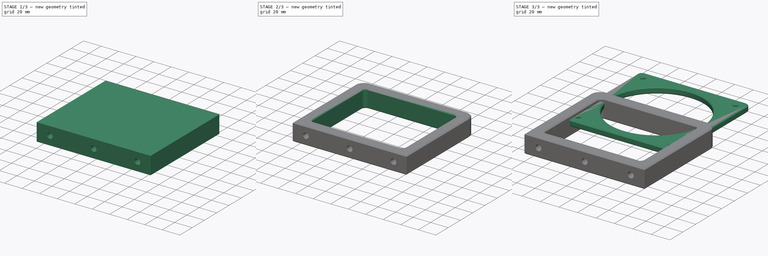
[diagram: build sequence overview — one tinted view per stage of 3, left to right]
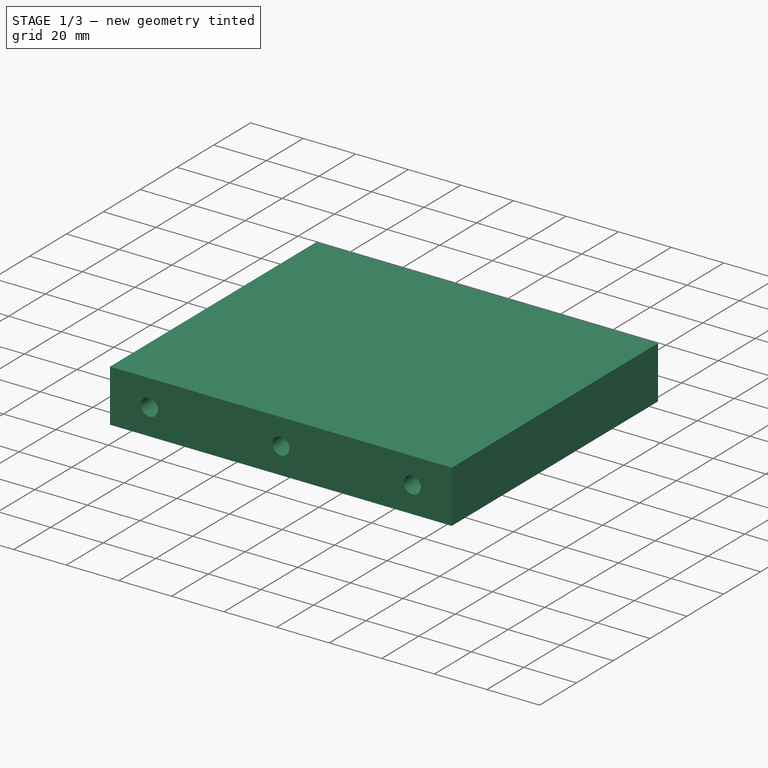
[diagram: stage 1 of 3 — iso view after this stage's code; geometry added in this stage tinted green]
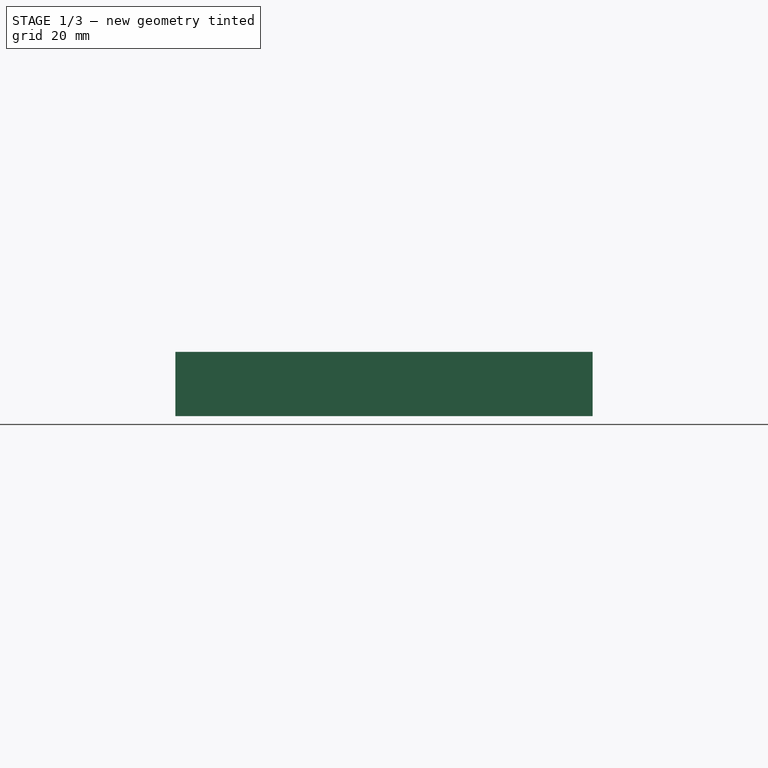
[diagram: stage 1 of 3 — front view after this stage's code; geometry added in this stage tinted green]
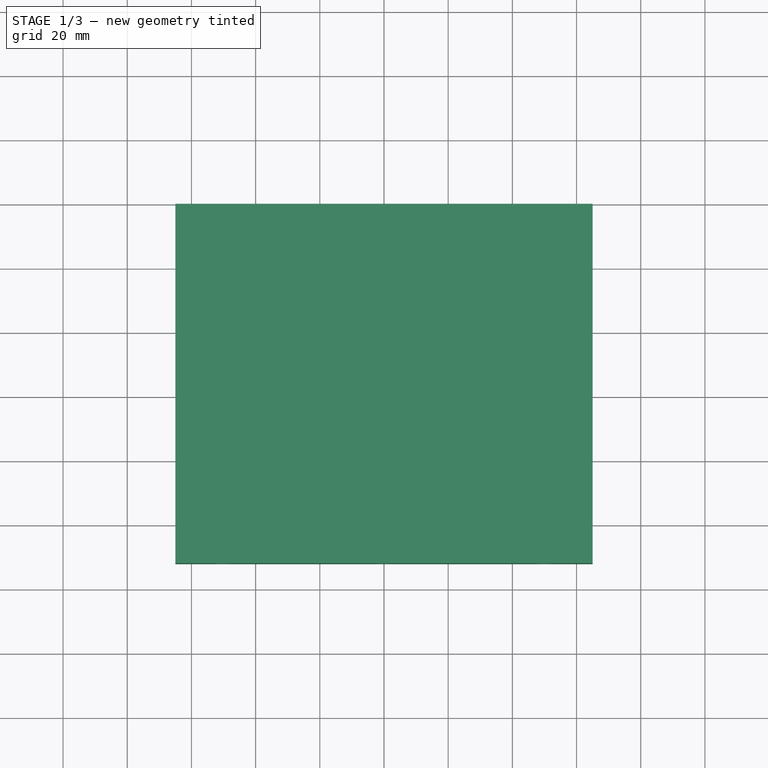
[diagram: stage 1 of 3 — top view after this stage's code; geometry added in this stage tinted green]
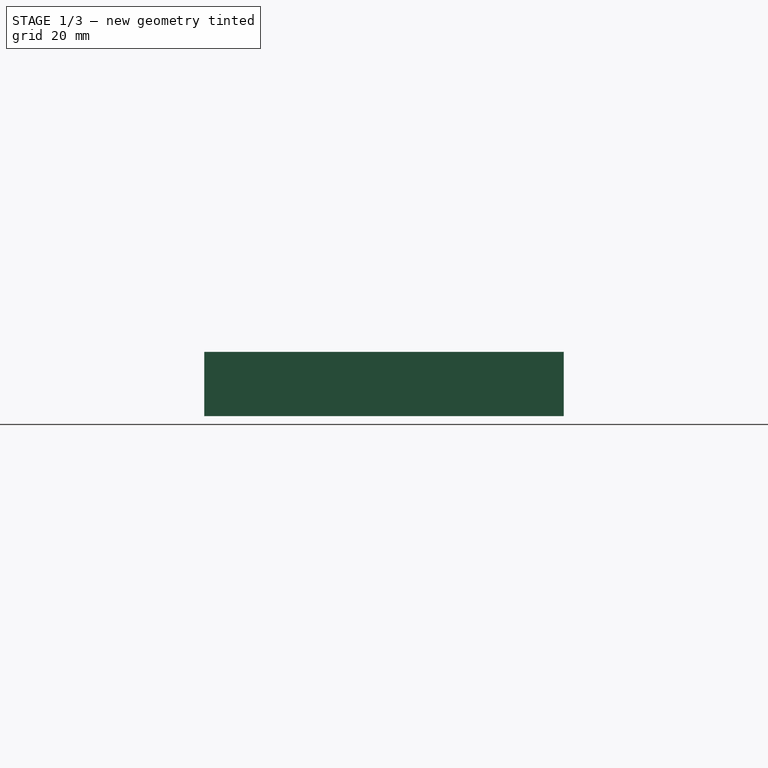
[diagram: stage 1 of 3 — right view after this stage's code; geometry added in this stage tinted green]
FCSTD DOCUMENT  (FreeCAD 0.22R36117 (Git))
Label: vesa 100 spacer
License: All rights reserved
LicenseURL: http://en.wikipedia.org/wiki/All_rights_reserved
objects: Sketcher::SketchObject×7, PartDesign::Body×3, PartDesign::Pad×2, PartDesign::Chamfer×2, PartDesign::Pocket×2, PartDesign::Fillet×1
note: 24 computed .brp shape members not serialized (recipe doc carries the construction recipe); baked Part::Feature solids carry a one-line shape summary decoded from their .brp

FEATURE [PartDesign::Body] Body  label="spacer"
  Group = -> [Sketch,Pad,Chamfer]
  Origin = -> Origin
  Tip = -> Chamfer
FEATURE [Sketcher::SketchObject] Sketch002
  FullyConstrained = true
  MapMode = 5
  Support = -> [XY_Plane001]
  sketch-geometry (22):
    g0: LineSegment StartX=-50 StartY=50 StartZ=0 EndX=-50 EndY=-50 EndZ=0
    g1: LineSegment StartX=-50 StartY=-50 StartZ=0 EndX=50 EndY=-50 EndZ=0
    g2: LineSegment StartX=50 StartY=-50 StartZ=0 EndX=50 EndY=50 EndZ=0
    g3: LineSegment StartX=50 StartY=50 StartZ=0 EndX=-50 EndY=50 EndZ=0
    g4: LineSegment StartX=-165 StartY=63 StartZ=0 EndX=165 EndY=63 EndZ=0
    g5: LineSegment StartX=165 StartY=63 StartZ=0 EndX=165 EndY=223 EndZ=0
    g6: LineSegment StartX=165 StartY=223 StartZ=0 EndX=245 EndY=223 EndZ=0
    g7: LineSegment StartX=245 StartY=223 StartZ=0 EndX=245 EndY=33 EndZ=0
    g8: LineSegment StartX=245 StartY=33 StartZ=0 EndX=75 EndY=-63 EndZ=0
    g9: LineSegment StartX=75 StartY=-63 StartZ=0 EndX=-75 EndY=-63 EndZ=0
    g10: LineSegment StartX=-75 StartY=-63 StartZ=0 EndX=-245 EndY=33 EndZ=0
    g11: LineSegment StartX=-245 StartY=33 StartZ=0 EndX=-245 EndY=223 EndZ=0
    g12: LineSegment StartX=-245 StartY=223 StartZ=0 EndX=-165 EndY=223 EndZ=0
    g13: LineSegment StartX=-165 StartY=223 StartZ=0 EndX=-165 EndY=63 EndZ=0
    g14: LineSegment StartX=-205 StartY=211.5 StartZ=0 EndX=-205 EndY=201.5 EndZ=0
    g15: LineSegment StartX=205 StartY=211.5 StartZ=0 EndX=205 EndY=201.5 EndZ=0
    g16: LineSegment StartX=215 StartY=201.5 StartZ=0 EndX=195 EndY=201.5 EndZ=0
    g17: LineSegment StartX=-215 StartY=201.5 StartZ=0 EndX=-195 EndY=201.5 EndZ=0
    g18: GeomPoint X=-165 Y=201.5 Z=0
    g19: GeomPoint X=-245 Y=201.5 Z=0
    g20: GeomPoint X=165 Y=201.5 Z=0
    g21: GeomPoint X=245 Y=201.5 Z=0
  constraints (59):
    c: Coincident(g0,g1)
    c: Coincident(g1,g2)
    c: Coincident(g2,g3)
    c: Coincident(g3,g0)
    c: Vertical(g0)
    c: Vertical(g2)
    c: Horizontal(g1)
    c: Horizontal(g3)
    c: Symmetric(g0,g2,g-1)
    c: Equal(g3,g2)
    c: DistanceX(g3,g3) = 100
    c: Coincident(g4,g5)
    c: Vertical(g5)
    c: Coincident(g5,g6)
    c: Horizontal(g6)
    c: Coincident(g6,g7)
    c: Vertical(g7)
    c: Coincident(g7,g8)
    c: Coincident(g8,g9)
    c: Coincident(g9,g10)
    c: Coincident(g10,g11)
    c: Vertical(g11)
    c: Coincident(g11,g12)
    c: Horizontal(g12)
    c: Coincident(g12,g13)
    c: Coincident(g13,g4)
    c: Vertical(g13)
    c: Equal(g13,g5)
    c: Equal(g7,g11)
    c: Equal(g12,g6)
    c: Symmetric(g9,g8,g-2)
    c: Symmetric(g4,g4,g-2)
    c: DistanceX(g6,g6) = 80
    c: DistanceX(g4,g4) = 330
    c: DistanceY(g7,g7) = 190
    c: DistanceX(g9,g9) = 150
    c: Vertical(g14)
    c: Vertical(g15)
    c: Equal(g14,g15)
    c: Horizontal(g16)
    c: PointOnObject(g14,g17)
    c: Symmetric(g17,g17,g14)
    c: Symmetric(g16,g16,g15)
    c: DistanceX(g17,g17) = 20
    c: Equal(g17,g16)
    c: PointOnObject(g18,g13)
    c: PointOnObject(g19,g11)
    c: PointOnObject(g20,g5)
    c: PointOnObject(g21,g7)
    c: Symmetric(g21,g20,g15)
    c: Symmetric(g19,g18,g14)
    c: DistanceY(g14,g12) = 21.5
    c: Horizontal(g19,g18)
    c: Horizontal(g18,g20)
    c: Horizontal(g20,g21)
    c: DistanceY(g14,g14) = 10
    c: DistanceY(g8,g1) = 13
    c: DistanceY(g2,g4) = 13
    c: DistanceY(g13,g13) = 160
FEATURE [PartDesign::Body] Body001  label="backer"
  Group = -> [Sketch002]
  Origin = -> Origin001
FEATURE [Sketcher::SketchObject] Sketch003  label="stop plate"
  FullyConstrained = true
  MapMode = 5
  Support = -> [XY_Plane001]
  sketch-geometry (21):
    g0: LineSegment StartX=-50 StartY=50 StartZ=0 EndX=-50 EndY=-50 EndZ=0
    g1: LineSegment StartX=-50 StartY=-50 StartZ=0 EndX=50 EndY=-50 EndZ=0
    g2: LineSegment StartX=50 StartY=-50 StartZ=0 EndX=50 EndY=50 EndZ=0
    g3: LineSegment StartX=50 StartY=50 StartZ=0 EndX=-50 EndY=50 EndZ=0
    g4: LineSegment StartX=-75 StartY=63 StartZ=0 EndX=75 EndY=63 EndZ=0
    g5: LineSegment StartX=67 StartY=-203 StartZ=0 EndX=-67 EndY=-203 EndZ=0
    g6: LineSegment StartX=75 StartY=63 StartZ=0 EndX=75 EndY=-195 EndZ=0
    g7: LineSegment StartX=-75 StartY=-195 StartZ=0 EndX=-75 EndY=63 EndZ=0
    g8: LineSegment StartX=-50 StartY=-195 StartZ=0 EndX=50 EndY=-195 EndZ=0
    g9: LineSegment StartX=0 StartY=-195 StartZ=0 EndX=0 EndY=-185 EndZ=0
    g10: ArcOfCircle CenterX=67 CenterY=-195 CenterZ=0 NormalX=0 NormalY=0 NormalZ=1 AngleXU=0 Radius=8 StartAngle=4.71239 EndAngle=6.28319
    g11: GeomPoint X=75 Y=-203 Z=0
    g12: ArcOfCircle CenterX=-67 CenterY=-195 CenterZ=0 NormalX=0 NormalY=0 NormalZ=1 AngleXU=0 Radius=8 StartAngle=3.14159 EndAngle=4.71239
    g13: GeomPoint X=-75 Y=-203 Z=0
    g14: Circle CenterX=-50 CenterY=50 CenterZ=0 NormalX=0 NormalY=0 NormalZ=1 AngleXU=0 Radius=2.3
    g15: Circle CenterX=-50 CenterY=-50 CenterZ=0 NormalX=0 NormalY=0 NormalZ=1 AngleXU=0 Radius=2.3
    g16: Circle CenterX=50 CenterY=-50 CenterZ=0 NormalX=0 NormalY=0 NormalZ=1 AngleXU=0 Radius=2.3
    g17: Circle CenterX=50 CenterY=50 CenterZ=0 NormalX=0 NormalY=0 NormalZ=1 AngleXU=0 Radius=2.3
    g18: Circle CenterX=-50 CenterY=-195 CenterZ=0 NormalX=0 NormalY=0 NormalZ=1 AngleXU=0 Radius=2.8
    g19: Circle CenterX=0 CenterY=-195 CenterZ=0 NormalX=0 NormalY=0 NormalZ=1 AngleXU=0 Radius=2.8
    g20: Circle CenterX=50 CenterY=-195 CenterZ=0 NormalX=0 NormalY=0 NormalZ=1 AngleXU=0 Radius=2.8
  constraints (50):
    c: Coincident(g0,g1)
    c: Coincident(g1,g2)
    c: Coincident(g2,g3)
    c: Coincident(g3,g0)
    c: Vertical(g0)
    c: Vertical(g2)
    c: Horizontal(g1)
    c: Horizontal(g3)
    c: Symmetric(g0,g2,g-1)
    c: Equal(g3,g2)
    c: DistanceX(g3,g3) = 100
    c: Symmetric(g13,g11,g-2)
    c: Symmetric(g4,g4,g-2)
    c: DistanceX(g13,g11) = 150
    c: DistanceY(g11,g1) = 153
    c: DistanceY(g2,g4) = 13
    c: Vertical(g11,g4)
    c: Coincident(g6,g4)
    c: Coincident(g7,g4)
    c: Horizontal(g8)
    c: DistanceX(g8,g8) = 100
    c: Vertical(g9)
    c: DistanceY(g9,g9) = 10
    c: Symmetric(g8,g8,g9)
    c: DistanceY(g11,g8) = 8
    c: PointOnObject(g9,g-2)
    c: PointOnObject(g11,g5)
    c: PointOnObject(g11,g6)
    c: Tangent(g5,g10) = 1.5708
    c: Tangent(g6,g10) = 1.5708
    c: PointOnObject(g13,g5)
    c: PointOnObject(g13,g7)
    c: Tangent(g5,g12) = 1.5708
    c: Tangent(g7,g12) = 1.5708
    c: Equal(g12,g10)
    c: Radius(g12) = 8
    c: Coincident(g14,g0)
    c: Coincident(g15,g0)
    c: Coincident(g16,g1)
    c: Coincident(g17,g2)
    c: Coincident(g18,g8)
    c: Coincident(g19,g9)
    c: Coincident(g20,g8)
    c: Equal(g18,g19)
    c: Equal(g18,g20)
    c: Diameter(g18) = 5.6
    c: Equal(g14,g15)
    c: Equal(g14,g16)
    c: Equal(g14,g17)
    c: Diameter(g14) = 4.6
FEATURE [Sketcher::SketchObject] Sketch004  label="spacer plate"
  FullyConstrained = true
  MapMode = 5
  Support = -> [XY_Plane001]
  sketch-geometry (12):
    g0: LineSegment StartX=-50 StartY=50 StartZ=0 EndX=-50 EndY=-50 EndZ=0
    g1: LineSegment StartX=-50 StartY=-50 StartZ=0 EndX=50 EndY=-50 EndZ=0
    g2: LineSegment StartX=50 StartY=-50 StartZ=0 EndX=50 EndY=50 EndZ=0
    g3: LineSegment StartX=50 StartY=50 StartZ=0 EndX=-50 EndY=50 EndZ=0
    g4: LineSegment StartX=-75 StartY=63 StartZ=0 EndX=75 EndY=63 EndZ=0
    g5: LineSegment StartX=75 StartY=63 StartZ=0 EndX=75 EndY=-63 EndZ=0
    g6: LineSegment StartX=-75 StartY=-63 StartZ=0 EndX=-75 EndY=63 EndZ=0
    g7: Circle CenterX=-50 CenterY=50 CenterZ=0 NormalX=0 NormalY=0 NormalZ=1 AngleXU=0 Radius=2.3
    g8: Circle CenterX=-50 CenterY=-50 CenterZ=0 NormalX=0 NormalY=0 NormalZ=1 AngleXU=0 Radius=2.3
    g9: Circle CenterX=50 CenterY=-50 CenterZ=0 NormalX=0 NormalY=0 NormalZ=1 AngleXU=0 Radius=2.3
    g10: Circle CenterX=50 CenterY=50 CenterZ=0 NormalX=0 NormalY=0 NormalZ=1 AngleXU=0 Radius=2.3
    g11: LineSegment StartX=-75 StartY=-63 StartZ=0 EndX=75 EndY=-63 EndZ=0
  constraints (29):
    c: Coincident(g0,g1)
    c: Coincident(g1,g2)
    c: Coincident(g2,g3)
    c: Coincident(g3,g0)
    c: Vertical(g0)
    c: Vertical(g2)
    c: Horizontal(g1)
    c: Horizontal(g3)
    c: Symmetric(g0,g2,g-1)
    c: Equal(g3,g2)
    c: DistanceX(g3,g3) = 100
    c: Symmetric(g4,g4,g-2)
    c: DistanceY(g2,g4) = 13
    c: Coincident(g5,g4)
    c: Coincident(g6,g4)
    c: Coincident(g7,g0)
    c: Coincident(g8,g0)
    c: Coincident(g9,g1)
    c: Coincident(g10,g2)
    c: Equal(g7,g8)
    c: Equal(g7,g9)
    c: Equal(g7,g10)
    c: Diameter(g7) = 4.6
    c: Horizontal(g11)
    c: Symmetric(g11,g4,g-1)
    c: Coincident(g5,g11)
    c: DistanceX(g11,g11) = 150
    c: Coincident(g11,g6)
    c: Vertical(g5)
FEATURE [Sketcher::SketchObject] Sketch005
  FullyConstrained = true
  MapMode = 5
  Placement = pos=(0,0,0) rot=(1,0,0;1.5708rad)
  Support = -> [XZ_Plane002]
  sketch-geometry (4):
    g0: LineSegment StartX=-65 StartY=10 StartZ=0 EndX=-65 EndY=-10 EndZ=0
    g1: LineSegment StartX=-65 StartY=-10 StartZ=0 EndX=65 EndY=-10 EndZ=0
    g2: LineSegment StartX=65 StartY=-10 StartZ=0 EndX=65 EndY=10 EndZ=0
    g3: LineSegment StartX=65 StartY=10 StartZ=0 EndX=-65 EndY=10 EndZ=0
  constraints (11):
    c: Coincident(g0,g1)
    c: Coincident(g1,g2)
    c: Coincident(g2,g3)
    c: Coincident(g3,g0)
    c: Vertical(g0)
    c: Vertical(g2)
    c: Horizontal(g1)
    c: Horizontal(g3)
    c: DistanceX(g3,g3) = 130
    c: DistanceY(g2,g2) = 20
    c: Symmetric(g0,g2,g-1)
FEATURE [PartDesign::Pad] Pad001
  Direction = (0,-1,2e-16)
  Length = 112
  Length2 = 10
  Placement = pos=(0,0,0) rot=(1,0,0;1.5708rad)
  Profile = -> Sketch005
  ReferenceAxis = -> Sketch005 [N_Axis]
  Suppressed = false
  Type = 0
FEATURE [Sketcher::SketchObject] Sketch006
  FullyConstrained = true
  MapMode = 5
  Placement = pos=(0,-112,2.49e-14) rot=(1,0,0;1.5708rad)
  Support = -> [Pad001]
  sketch-geometry (3):
    g0: Circle CenterX=0 CenterY=0 CenterZ=0 NormalX=0 NormalY=0 NormalZ=1 AngleXU=0 Radius=3.2
    g1: Circle CenterX=50 CenterY=0 CenterZ=0 NormalX=0 NormalY=0 NormalZ=1 AngleXU=0 Radius=3.2
    g2: Circle CenterX=-50 CenterY=9e-16 CenterZ=0 NormalX=0 NormalY=0 NormalZ=1 AngleXU=0 Radius=3.2
  constraints (8):
    c: PointOnObject(g0,g-2)
    c: Equal(g0,g1)
    c: Equal(g0,g2)
    c: Diameter(g0) = 6.4
    c: Symmetric(g2,g1,g-2)
    c: DistanceX(g2,g1) = 100
    c: PointOnObject(g1,g-1)
    c: PointOnObject(g0,g-1)
FEATURE [PartDesign::Pocket] Pocket
  BaseFeature = -> Pad001
  Direction = (0,1,-2e-16)
  Length = 10
  Length2 = 5
  Placement = pos=(0,0,0) rot=(1,0,0;1.5708rad)
  Profile = -> Sketch006
  ReferenceAxis = -> Sketch006 [N_Axis]
  Suppressed = false
  Type = 0
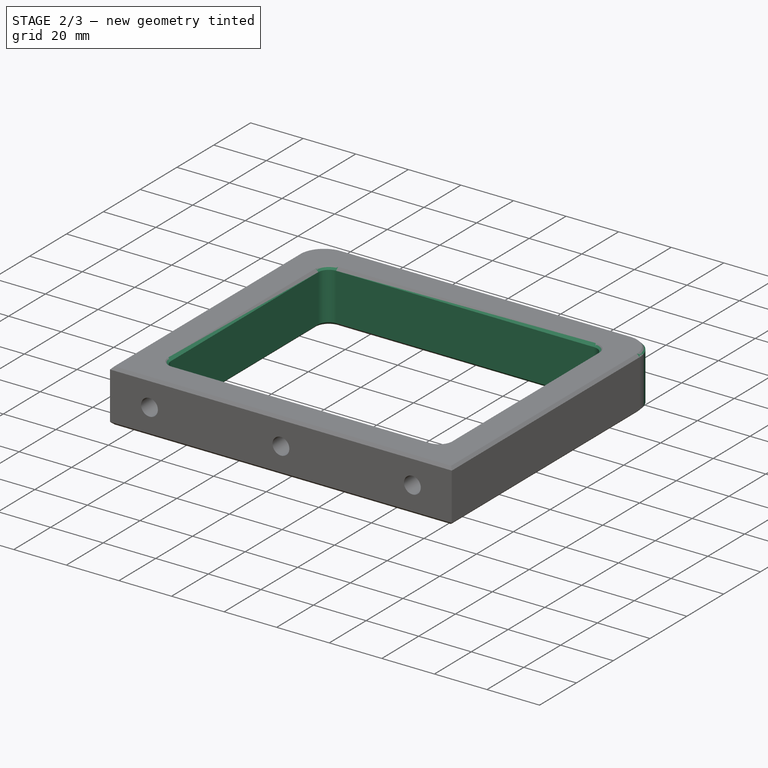
[diagram: stage 2 of 3 — iso view after this stage's code; geometry added in this stage tinted green]
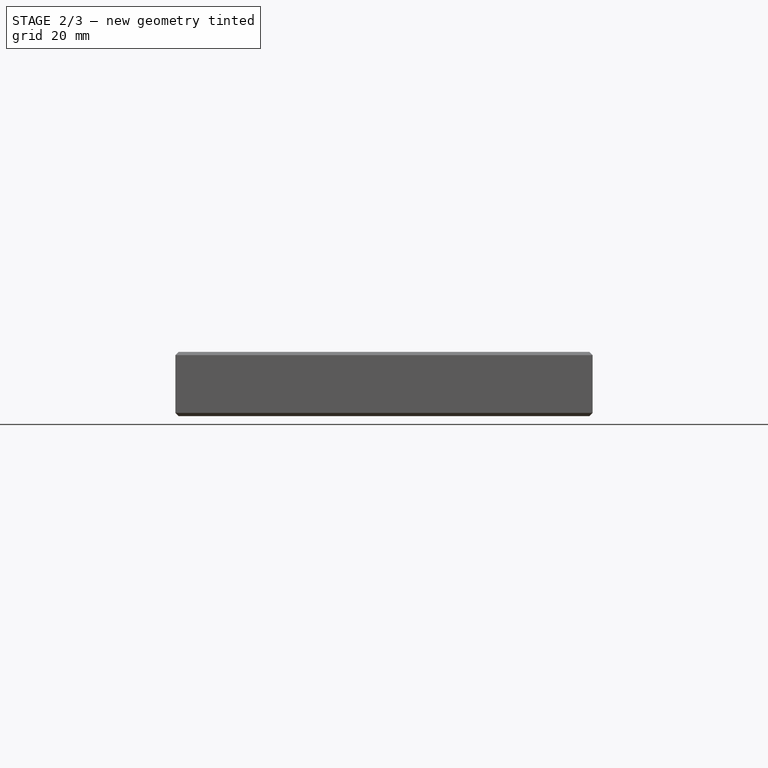
[diagram: stage 2 of 3 — front view after this stage's code; geometry added in this stage tinted green]
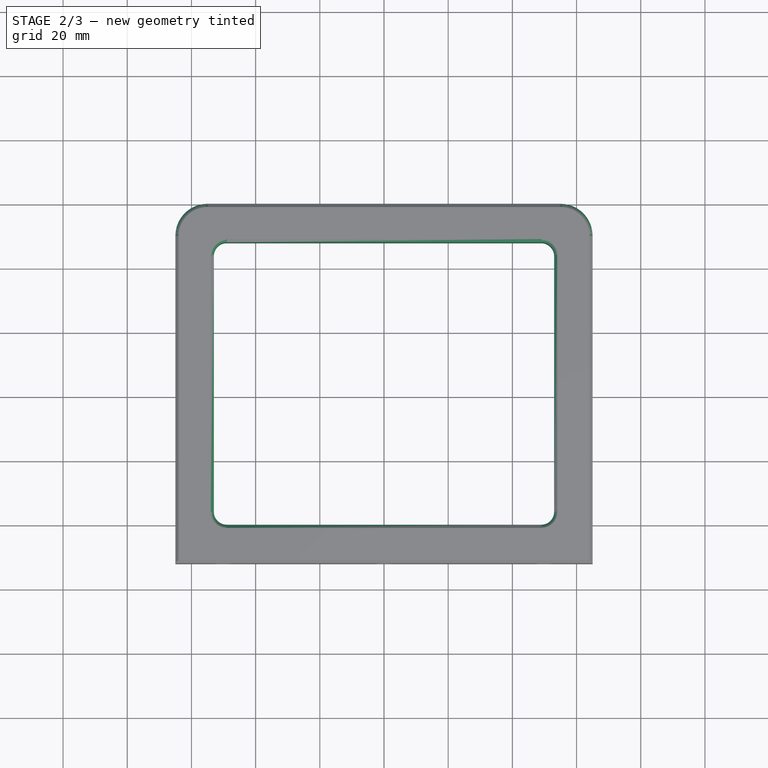
[diagram: stage 2 of 3 — top view after this stage's code; geometry added in this stage tinted green]
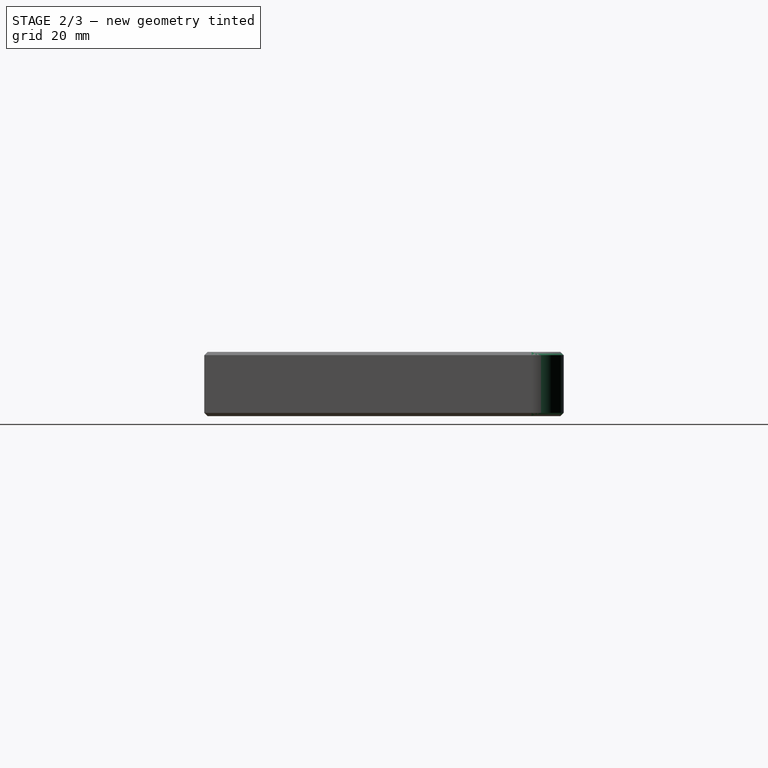
[diagram: stage 2 of 3 — right view after this stage's code; geometry added in this stage tinted green]
FEATURE [Sketcher::SketchObject] Sketch007
  ExternalGeometry = -> [Pocket]
  FullyConstrained = true
  MapMode = 5
  Placement = pos=(0,-2.2e-15,-10) rot=(1,0,0;3.14159rad)
  Support = -> [Pocket]
  sketch-geometry (10):
    g0: LineSegment StartX=-53 StartY=96 StartZ=0 EndX=-53 EndY=16 EndZ=0
    g1: LineSegment StartX=-49 StartY=12 StartZ=0 EndX=49 EndY=12 EndZ=0
    g2: LineSegment StartX=53 StartY=16 StartZ=0 EndX=53 EndY=96 EndZ=0
    g3: LineSegment StartX=49 StartY=100 StartZ=0 EndX=-49 EndY=100 EndZ=0
    g4: ArcOfCircle CenterX=-49 CenterY=96 CenterZ=0 NormalX=0 NormalY=0 NormalZ=1 AngleXU=0 Radius=4 StartAngle=1.5708 EndAngle=3.14159
    g5: ArcOfCircle CenterX=-49 CenterY=16 CenterZ=0 NormalX=0 NormalY=0 NormalZ=1 AngleXU=0 Radius=4 StartAngle=3.14159 EndAngle=4.71239
    g6: ArcOfCircle CenterX=49 CenterY=16 CenterZ=0 NormalX=0 NormalY=0 NormalZ=1 AngleXU=0 Radius=4 StartAngle=4.71239 EndAngle=6.28319
    g7: ArcOfCircle CenterX=49 CenterY=96 CenterZ=0 NormalX=0 NormalY=0 NormalZ=1 AngleXU=0 Radius=4 StartAngle=-1.8e-15 EndAngle=1.5708
    g8: GeomPoint X=-53 Y=100 Z=0
    g9: GeomPoint X=53 Y=12 Z=0
  constraints (23):
    c: Tangent(g0,g4) = -1.5708
    c: Tangent(g0,g5) = -1.5708
    c: Tangent(g1,g5) = -1.5708
    c: Tangent(g1,g6) = -1.5708
    c: Tangent(g2,g6) = -1.5708
    c: Tangent(g2,g7) = -1.5708
    c: Tangent(g3,g7) = -1.5708
    c: Tangent(g3,g4) = -1.5708
    c: Vertical(g0)
    c: Vertical(g2)
    c: Horizontal(g1)
    c: Horizontal(g3)
    c: Equal(g4,g5)
    c: Equal(g6,g7)
    c: PointOnObject(g8,g0)
    c: PointOnObject(g8,g3)
    c: PointOnObject(g9,g1)
    c: PointOnObject(g9,g2)
    c: Radius(g5) = 4
    c: DistanceY(g-1,g1) = 12
    c: DistanceY(g3,g-3) = 12
    c: Symmetric(g5,g6,g-2)
    c: DistanceX(g2,g-3) = 12
FEATURE [PartDesign::Pocket] Pocket001
  BaseFeature = -> Pocket
  Direction = (0,0,1)
  Length = 5
  Length2 = 5
  Placement = pos=(0,0,0) rot=(1,0,0;1.5708rad)
  Profile = -> Sketch007
  ReferenceAxis = -> Sketch007 [N_Axis]
  Suppressed = false
  Type = 1
FEATURE [PartDesign::Fillet] Fillet
  Base = -> Pocket001 [Edge3,Edge27]
  BaseFeature = -> Pocket001
  Placement = pos=(0,0,0) rot=(1,0,0;1.5708rad)
  Radius = 10
  SupportTransform = false
  Suppressed = false
  UseAllEdges = false
FEATURE [PartDesign::Chamfer] Chamfer001
  Angle = 45
  Base = -> Fillet [Face5,Face2]
  BaseFeature = -> Fillet
  ChamferType = 0
  FlipDirection = false
  Placement = pos=(0,0,0) rot=(1,0,0;1.5708rad)
  Size = 1
  Size2 = 1
  SupportTransform = false
  Suppressed = false
  UseAllEdges = false
FEATURE [PartDesign::Body] Body002  label="riser"
  Group = -> [Sketch005,Pad001,Sketch006,Pocket,Sketch007,Pocket001,Fillet,Chamfer001]
  Origin = -> Origin002
  Tip = -> Chamfer001
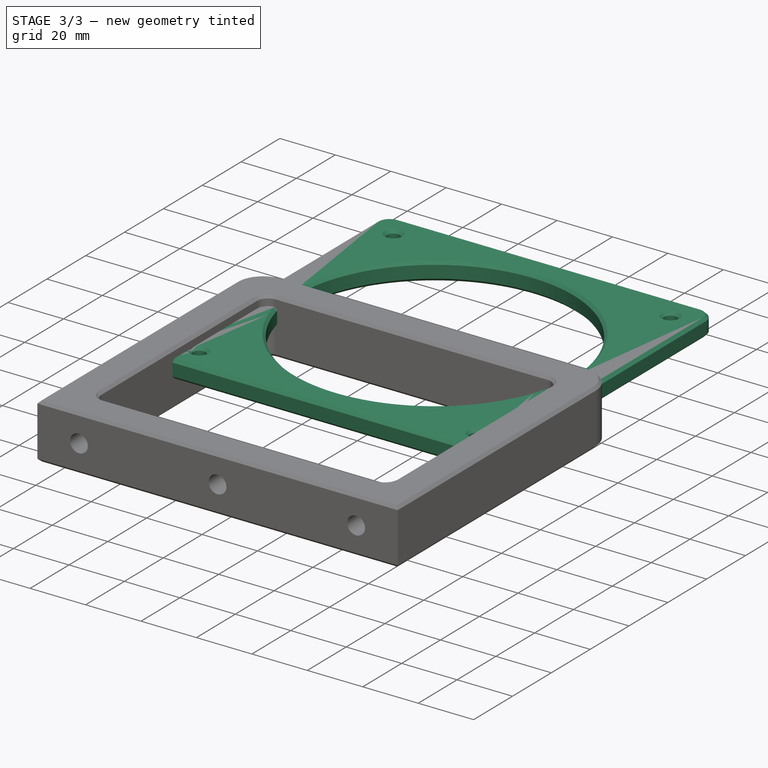
[diagram: stage 3 of 3 — iso view after this stage's code; geometry added in this stage tinted green]
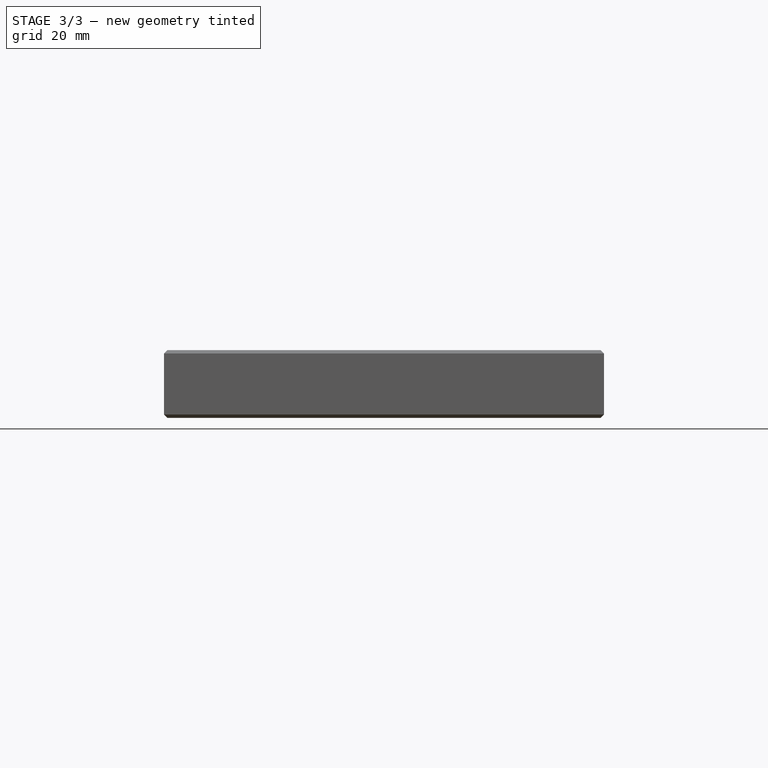
[diagram: stage 3 of 3 — front view after this stage's code; geometry added in this stage tinted green]
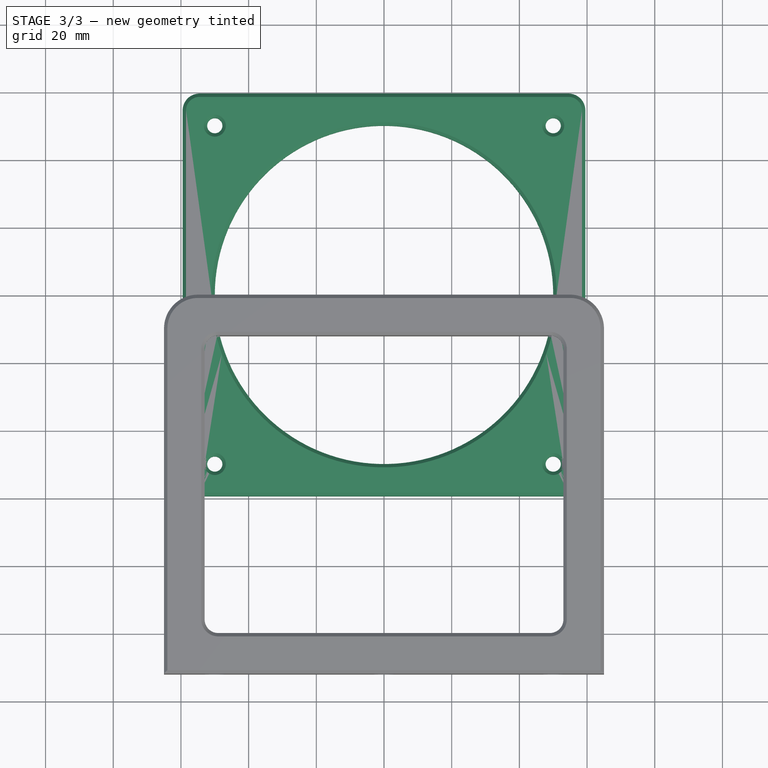
[diagram: stage 3 of 3 — top view after this stage's code; geometry added in this stage tinted green]
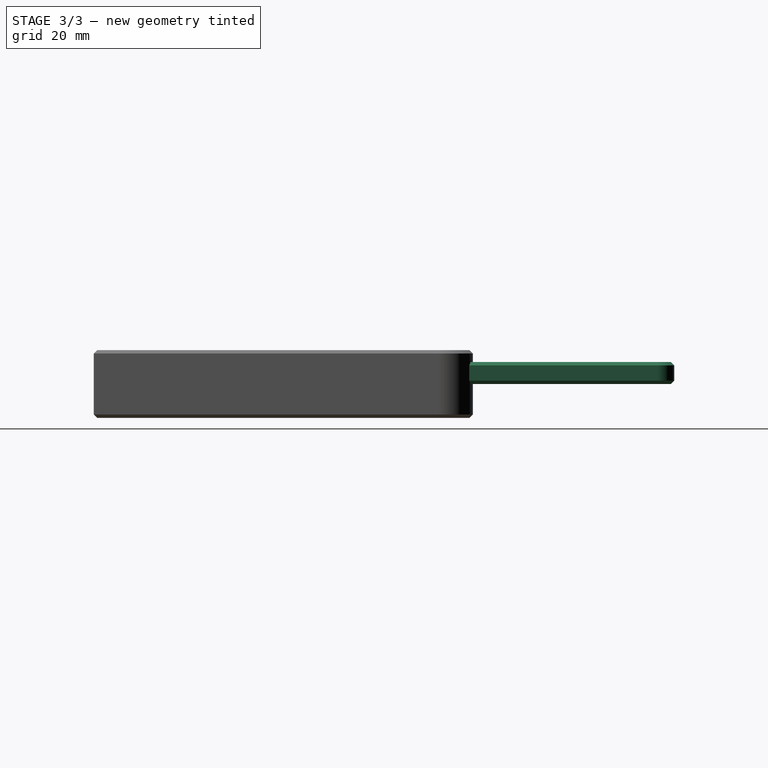
[diagram: stage 3 of 3 — right view after this stage's code; geometry added in this stage tinted green]
FEATURE [Sketcher::SketchObject] Sketch
  FullyConstrained = true
  MapMode = 5
  Support = -> [XY_Plane]
  sketch-geometry (21):
    g0: LineSegment StartX=-59.5 StartY=54.5 StartZ=0 EndX=-59.5 EndY=-54.5 EndZ=0
    g1: LineSegment StartX=-54.5 StartY=-59.5 StartZ=0 EndX=54.5 EndY=-59.5 EndZ=0
    g2: LineSegment StartX=59.5 StartY=-54.5 StartZ=0 EndX=59.5 EndY=54.5 EndZ=0
    g3: LineSegment StartX=54.5 StartY=59.5 StartZ=0 EndX=-54.5 EndY=59.5 EndZ=0
    g4: LineSegment StartX=-50 StartY=50 StartZ=0 EndX=-50 EndY=-50 EndZ=0
    g5: LineSegment StartX=-50 StartY=-50 StartZ=0 EndX=50 EndY=-50 EndZ=0
    g6: LineSegment StartX=50 StartY=-50 StartZ=0 EndX=50 EndY=50 EndZ=0
    g7: LineSegment StartX=50 StartY=50 StartZ=0 EndX=-50 EndY=50 EndZ=0
    g8: Circle CenterX=-50 CenterY=50 CenterZ=0 NormalX=0 NormalY=0 NormalZ=1 AngleXU=0 Radius=2.25
    g9: Circle CenterX=50 CenterY=50 CenterZ=0 NormalX=0 NormalY=0 NormalZ=1 AngleXU=0 Radius=2.25
    g10: Circle CenterX=50 CenterY=-50 CenterZ=0 NormalX=0 NormalY=0 NormalZ=1 AngleXU=0 Radius=2.25
    g11: Circle CenterX=-50 CenterY=-50 CenterZ=0 NormalX=0 NormalY=0 NormalZ=1 AngleXU=0 Radius=2.25
    g12: ArcOfCircle CenterX=-54.5 CenterY=54.5 CenterZ=0 NormalX=0 NormalY=0 NormalZ=1 AngleXU=0 Radius=5 StartAngle=1.5708 EndAngle=3.14159
    g13: GeomPoint X=-59.5 Y=59.5 Z=0
    g14: ArcOfCircle CenterX=-54.5 CenterY=-54.5 CenterZ=0 NormalX=0 NormalY=0 NormalZ=1 AngleXU=0 Radius=5 StartAngle=3.14159 EndAngle=4.71239
    g15: GeomPoint X=-59.5 Y=-59.5 Z=0
    g16: ArcOfCircle CenterX=54.5 CenterY=-54.5 CenterZ=0 NormalX=0 NormalY=0 NormalZ=1 AngleXU=0 Radius=5 StartAngle=4.71239 EndAngle=6.28319
    g17: GeomPoint X=59.5 Y=-59.5 Z=0
    g18: ArcOfCircle CenterX=54.5 CenterY=54.5 CenterZ=0 NormalX=0 NormalY=0 NormalZ=1 AngleXU=0 Radius=5 StartAngle=1.57e-14 EndAngle=1.5708
    g19: GeomPoint X=59.5 Y=59.5 Z=0
    g20: Circle CenterX=0 CenterY=0 CenterZ=0 NormalX=0 NormalY=0 NormalZ=1 AngleXU=0 Radius=50
  constraints (48):
    c: Vertical(g0)
    c: Vertical(g2)
    c: Horizontal(g1)
    c: Horizontal(g3)
    c: Symmetric(g15,g19,g-1)
    c: DistanceX(g13,g19) = 119
    c: Coincident(g4,g5)
    c: Coincident(g5,g6)
    c: Coincident(g6,g7)
    c: Coincident(g7,g4)
    c: Vertical(g4)
    c: Vertical(g6)
    c: Horizontal(g5)
    c: Horizontal(g7)
    c: Symmetric(g4,g6,g-1)
    c: Equal(g7,g6)
    c: DistanceX(g7,g7) = 100
    c: Coincident(g8,g4)
    c: Coincident(g9,g6)
    c: Coincident(g10,g5)
    c: Coincident(g11,g4)
    c: Equal(g8,g9)
    c: Equal(g8,g10)
    c: Equal(g8,g11)
    c: Diameter(g8) = 4.5
    c: PointOnObject(g13,g3)
    c: PointOnObject(g13,g0)
    c: Tangent(g3,g12) = -1.5708
    c: Tangent(g0,g12) = -1.5708
    c: PointOnObject(g15,g0)
    c: PointOnObject(g15,g1)
    c: Tangent(g0,g14) = -1.5708
    c: Tangent(g1,g14) = -1.5708
    c: PointOnObject(g17,g1)
    c: PointOnObject(g17,g2)
    c: Tangent(g1,g16) = -1.5708
    c: Tangent(g2,g16) = -1.5708
    c: PointOnObject(g19,g2)
    c: PointOnObject(g19,g3)
    c: Tangent(g2,g18) = -1.5708
    c: Tangent(g3,g18) = -1.5708
    c: Equal(g18,g12)
    c: Equal(g12,g14)
    c: Equal(g14,g16)
    c: Equal(g3,g2)
    c: Radius(g18) = 5
    c: Coincident(g20,g-1)
    c: Diameter(g20) = 100
FEATURE [PartDesign::Pad] Pad
  Direction = (0,0,1)
  Length = 6.5
  Length2 = 10
  Profile = -> Sketch
  ReferenceAxis = -> Sketch [N_Axis]
  Suppressed = false
  Type = 0
FEATURE [PartDesign::Chamfer] Chamfer
  Angle = 45
  Base = -> Pad [Face15,Face14]
  BaseFeature = -> Pad
  ChamferType = 0
  FlipDirection = false
  Size = 1
  Size2 = 1
  SupportTransform = false
  Suppressed = false
  UseAllEdges = false
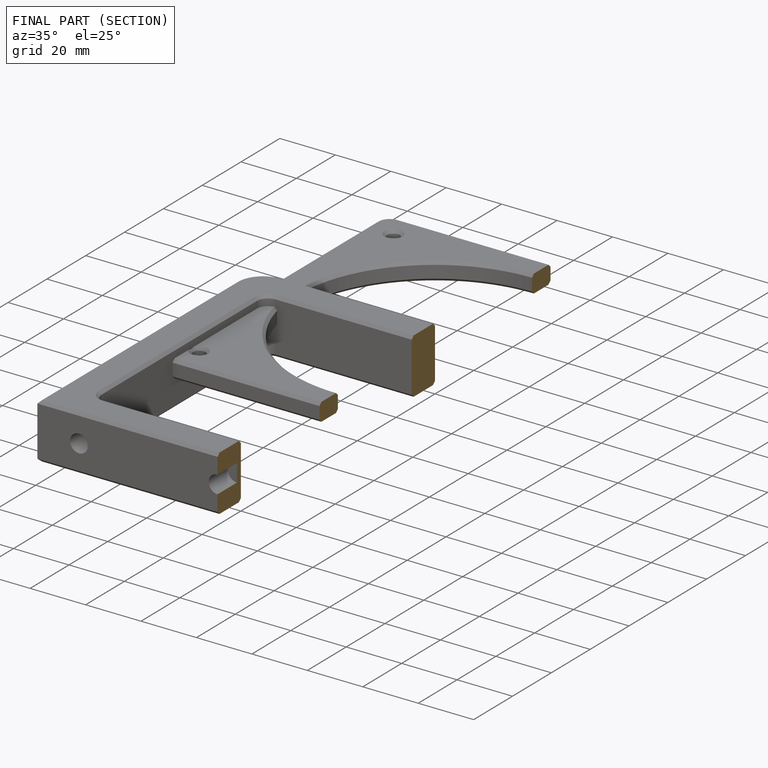
[diagram: finished part — half-section view (interior)]
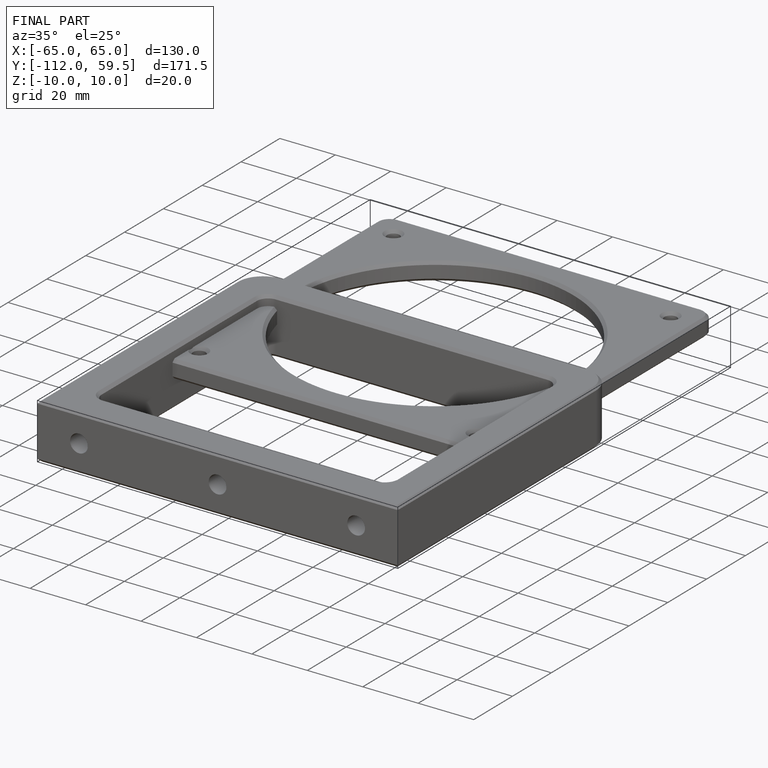
[diagram: finished part — iso view with bounding-box wireframe]
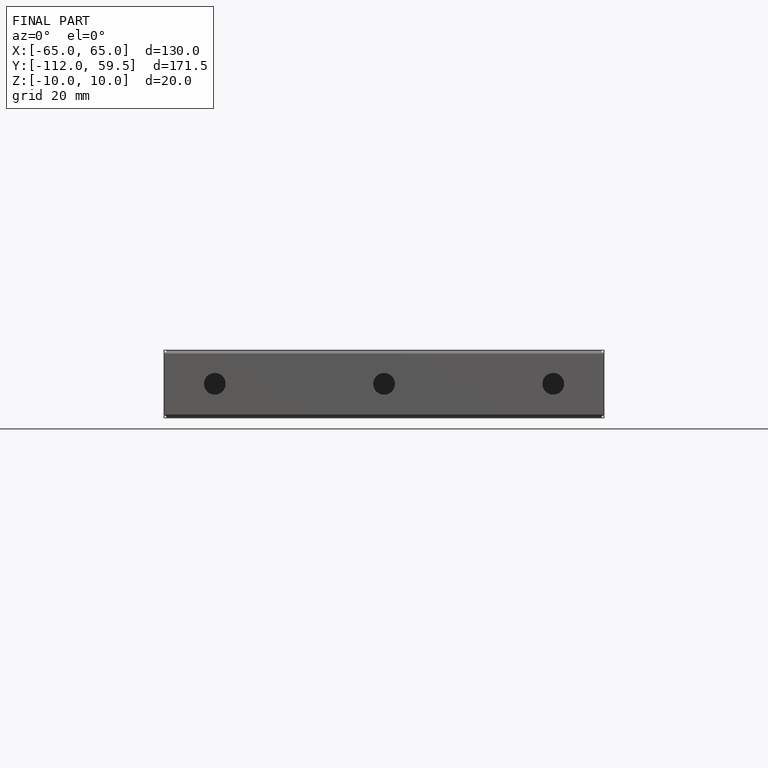
[diagram: finished part — front view with bounding-box wireframe]
